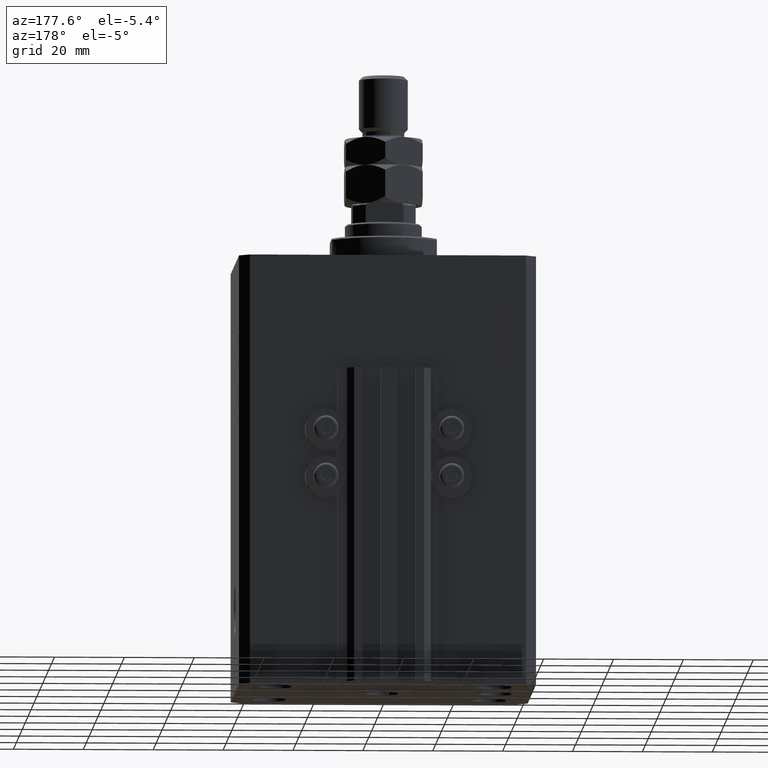
[diagram: clean part render]
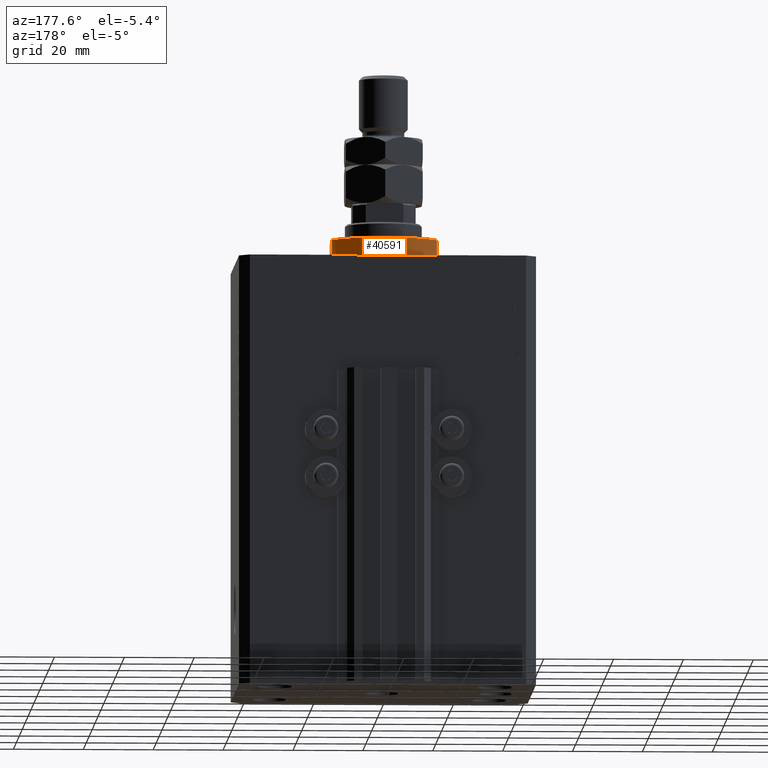
[diagram: same view with one face highlighted and labeled with its STEP entity id]
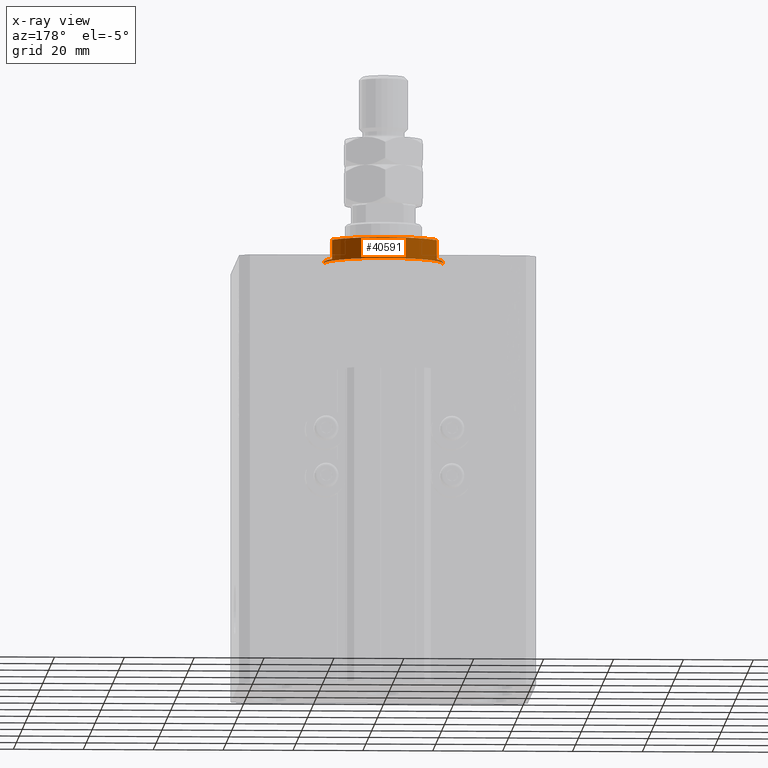
[diagram: x-ray of the same camera — body ghosted, the highlighted face saturated]
A machine part, auxiliary view. The second image highlights one B-rep face of the part: STEP entity #40591.
The next image is the same camera in x-ray: the body ghosted, the highlighted face saturated — about 3% of this face is hidden behind the body in this view.
In plain terms, the highlighted cylindrical surface (partial cylindrical patch) has radius 17 mm, axis along (0, 0, -1).
Its self-contained STEP definition (entity closure, byte-faithful):
#485 = EDGE_CURVE ( 'NONE', #41221, #17898, #47254, .T. ) ;
#714 = DIRECTION ( 'NONE',  ( 0.000000000000000000, 0.000000000000000000, -1.000000000000000000 ) ) ;
#2056 = VERTEX_POINT ( 'NONE', #35892 ) ;
#2148 = ORIENTED_EDGE ( 'NONE', *, *, #29685, .T. ) ;
#2192 = EDGE_CURVE ( 'NONE', #47177, #2056, #14616, .T. ) ;
#4440 = VECTOR ( 'NONE', #47069, 1000.000000000000000 ) ;
#4913 = DIRECTION ( 'NONE',  ( -1.000000000000000000, 0.000000000000000000, 0.000000000000000000 ) ) ;
#5923 = CARTESIAN_POINT ( 'NONE',  ( 0.000000000000000000, 0.000000000000000000, -0.4999999999999995559 ) ) ;
#6077 = DIRECTION ( 'NONE',  ( 0.000000000000000000, 0.000000000000000000, -1.000000000000000000 ) ) ;
#8093 = CARTESIAN_POINT ( 'NONE',  ( -14.99999999999999645, 8.000000000000003553, -1.000000000000000000 ) ) ;
#8477 = EDGE_CURVE ( 'NONE', #31390, #17898, #12965, .T. ) ;
#10616 = CIRCLE ( 'NONE', #45338, 17.00000000000000000 ) ;
#11679 = CIRCLE ( 'NONE', #27477, 17.00000000000000000 ) ;
#12066 = CARTESIAN_POINT ( 'NONE',  ( -15.00000000000000000, 8.000000000000001776, -7.000000000000000000 ) ) ;
#12965 = LINE ( 'NONE', #43107, #4440 ) ;
#13018 = CIRCLE ( 'NONE', #30382, 17.00000000000000000 ) ;
#14616 = LINE ( 'NONE', #33642, #47461 ) ;
#14841 = CARTESIAN_POINT ( 'NONE',  ( 0.000000000000000000, 0.000000000000000000, -7.000000000000000000 ) ) ;
#14907 = LINE ( 'NONE', #29984, #32937 ) ;
#15329 = CYLINDRICAL_SURFACE ( 'NONE', #34238, 17.00000000000000000 ) ;
#15760 = LINE ( 'NONE', #12066, #47404 ) ;
#16379 = EDGE_CURVE ( 'NONE', #19360, #41221, #14907, .T. ) ;
#16731 = ORIENTED_EDGE ( 'NONE', *, *, #16379, .T. ) ;
#17898 = VERTEX_POINT ( 'NONE', #30825 ) ;
#18319 = DIRECTION ( 'NONE',  ( -0.000000000000000000, -0.000000000000000000, 1.000000000000000000 ) ) ;
#18646 = ORIENTED_EDGE ( 'NONE', *, *, #22766, .F. ) ;
#19271 = CARTESIAN_POINT ( 'NONE',  ( 0.000000000000000000, 0.000000000000000000, -6.500000000000013323 ) ) ;
#19360 = VERTEX_POINT ( 'NONE', #29419 ) ;
#19535 = DIRECTION ( 'NONE',  ( -0.000000000000000000, -0.000000000000000000, 1.000000000000000000 ) ) ;
#20005 = DIRECTION ( 'NONE',  ( 0.000000000000000000, 0.000000000000000000, 1.000000000000000000 ) ) ;
#21932 = ORIENTED_EDGE ( 'NONE', *, *, #8477, .F. ) ;
#22554 = DIRECTION ( 'NONE',  ( -0.000000000000000000, -0.000000000000000000, 1.000000000000000000 ) ) ;
#22766 = EDGE_CURVE ( 'NONE', #19360, #45871, #11679, .T. ) ;
#22996 = CARTESIAN_POINT ( 'NONE',  ( 17.00000000000000000, 0.000000000000000000, -1.000000000000000000 ) ) ;
#24472 = DIRECTION ( 'NONE',  ( 1.000000000000000000, 0.000000000000000000, 0.000000000000000000 ) ) ;
#25348 = DIRECTION ( 'NONE',  ( -1.000000000000000000, 0.000000000000000000, 0.000000000000000000 ) ) ;
#25672 = ORIENTED_EDGE ( 'NONE', *, *, #485, .T. ) ;
#25862 = ORIENTED_EDGE ( 'NONE', *, *, #45460, .F. ) ;
#26209 = FACE_OUTER_BOUND ( 'NONE', #43787, .T. ) ;
#26709 = AXIS2_PLACEMENT_3D ( 'NONE', #5923, #34456, #24472 ) ;
#26927 = CARTESIAN_POINT ( 'NONE',  ( 0.000000000000000000, 0.000000000000000000, -1.000000000000000000 ) ) ;
#27477 = AXIS2_PLACEMENT_3D ( 'NONE', #39949, #6077, #25348 ) ;
#29419 = CARTESIAN_POINT ( 'NONE',  ( -17.00000000000000000, 2.081899558550500280E-15, -1.000000000000000000 ) ) ;
#29685 = EDGE_CURVE ( 'NONE', #30242, #45871, #15760, .T. ) ;
#29984 = CARTESIAN_POINT ( 'NONE',  ( -17.00000000000000000, 2.081899558550500280E-15, -7.000000000000000000 ) ) ;
#30184 = ORIENTED_EDGE ( 'NONE', *, *, #2192, .F. ) ;
#30242 = VERTEX_POINT ( 'NONE', #40857 ) ;
#30382 = AXIS2_PLACEMENT_3D ( 'NONE', #26927, #714, #4913 ) ;
#30743 = CARTESIAN_POINT ( 'NONE',  ( -17.00000000000000000, 2.081899558550500280E-15, -0.4999999999999995559 ) ) ;
#30825 = CARTESIAN_POINT ( 'NONE',  ( 17.00000000000000000, 0.000000000000000000, -0.4999999999999995559 ) ) ;
#31390 = VERTEX_POINT ( 'NONE', #22996 ) ;
#32937 = VECTOR ( 'NONE', #22554, 1000.000000000000000 ) ;
#33642 = CARTESIAN_POINT ( 'NONE',  ( 15.00000000000000000, 8.000000000000001776, -7.000000000000000000 ) ) ;
#34238 = AXIS2_PLACEMENT_3D ( 'NONE', #14841, #19535, #41282 ) ;
#34456 = DIRECTION ( 'NONE',  ( -0.000000000000000000, -0.000000000000000000, -1.000000000000000000 ) ) ;
#35892 = CARTESIAN_POINT ( 'NONE',  ( 14.99999999999999645, 8.000000000000003553, -1.000000000000000000 ) ) ;
#36238 = DIRECTION ( 'NONE',  ( -0.000000000000000000, -0.000000000000000000, 1.000000000000000000 ) ) ;
#38917 = CARTESIAN_POINT ( 'NONE',  ( 15.00000000000000000, 8.000000000000001776, -6.500000000000013323 ) ) ;
#39949 = CARTESIAN_POINT ( 'NONE',  ( 0.000000000000000000, 0.000000000000000000, -1.000000000000000000 ) ) ;
#40591 = ADVANCED_FACE ( 'NONE', ( #26209 ), #15329, .T. ) ;
#40857 = CARTESIAN_POINT ( 'NONE',  ( -15.00000000000000000, 8.000000000000001776, -6.500000000000013323 ) ) ;
#41221 = VERTEX_POINT ( 'NONE', #30743 ) ;
#41282 = DIRECTION ( 'NONE',  ( 1.000000000000000000, 0.000000000000000000, 0.000000000000000000 ) ) ;
#43107 = CARTESIAN_POINT ( 'NONE',  ( 17.00000000000000000, 0.000000000000000000, -7.000000000000000000 ) ) ;
#43252 = EDGE_CURVE ( 'NONE', #47177, #30242, #10616, .T. ) ;
#43787 = EDGE_LOOP ( 'NONE', ( #18646, #16731, #25672, #21932, #25862, #30184, #46962, #2148 ) ) ;
#45231 = DIRECTION ( 'NONE',  ( -1.000000000000000000, 0.000000000000000000, 0.000000000000000000 ) ) ;
#45338 = AXIS2_PLACEMENT_3D ( 'NONE', #19271, #20005, #45231 ) ;
#45460 = EDGE_CURVE ( 'NONE', #2056, #31390, #13018, .T. ) ;
#45871 = VERTEX_POINT ( 'NONE', #8093 ) ;
#46962 = ORIENTED_EDGE ( 'NONE', *, *, #43252, .T. ) ;
#47069 = DIRECTION ( 'NONE',  ( -0.000000000000000000, -0.000000000000000000, 1.000000000000000000 ) ) ;
#47177 = VERTEX_POINT ( 'NONE', #38917 ) ;
#47254 = CIRCLE ( 'NONE', #26709, 17.00000000000000000 ) ;
#47404 = VECTOR ( 'NONE', #36238, 1000.000000000000000 ) ;
#47461 = VECTOR ( 'NONE', #18319, 1000.000000000000000 ) ;